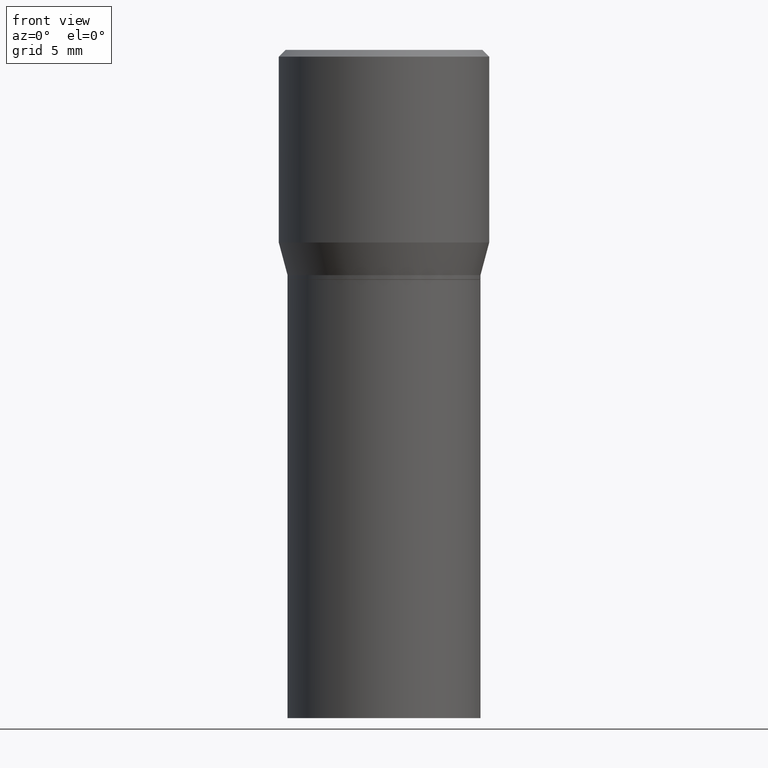
[diagram: clean part render]
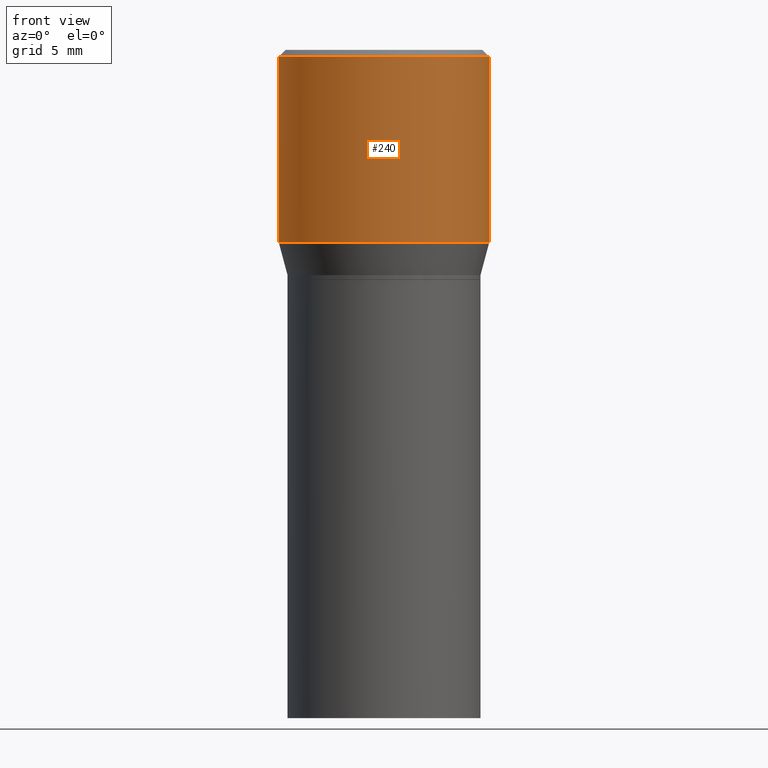
[diagram: same view with one face highlighted and labeled with its STEP entity id]
A machine part, front view. The second image highlights one B-rep face of the part: STEP entity #240.
In plain terms, the highlighted cylindrical surface (partial cylindrical patch) has radius 5.9995 mm, axis along (-0, 0, 1).
Its self-contained STEP definition (entity closure, byte-faithful):
#11 = CARTESIAN_POINT ( 'NONE',  ( -0.2361999999999999933, 1.678301941865356591E-15, -1.161852468318208757E-29 ) ) ;
#15 = DIRECTION ( 'NONE',  ( 1.000000000000000000, -6.982962677686268288E-15, 0.000000000000000000 ) ) ;
#22 = LINE ( 'NONE', #124, #61 ) ;
#57 = CARTESIAN_POINT ( 'NONE',  ( 1.057335613469222325E-29, -1.509595033060739709E-15, -0.4323652016312719004 ) ) ;
#61 = VECTOR ( 'NONE', #423, 39.37007874015748143 ) ;
#75 = CARTESIAN_POINT ( 'NONE',  ( 0.2361999999999999933, -3.158970817530236235E-15, -0.4323652016312719004 ) ) ;
#110 = FACE_OUTER_BOUND ( 'NONE', #420, .T. ) ;
#112 = VECTOR ( 'NONE', #378, 39.37007874015748143 ) ;
#124 = CARTESIAN_POINT ( 'NONE',  ( 0.2361999999999999933, -1.649375784469496131E-15, 1.151752954443000088E-29 ) ) ;
#127 = AXIS2_PLACEMENT_3D ( 'NONE', #57, #215, #15 ) ;
#129 = ORIENTED_EDGE ( 'NONE', *, *, #308, .T. ) ;
#136 = DIRECTION ( 'NONE',  ( 1.000000000000000000, -6.982962677686266711E-15, 0.000000000000000000 ) ) ;
#145 = EDGE_CURVE ( 'NONE', #317, #426, #162, .T. ) ;
#162 = CIRCLE ( 'NONE', #262, 0.2361999999999999933 ) ;
#175 = CARTESIAN_POINT ( 'NONE',  ( -0.2361999999999999933, 1.687069088046168326E-16, -0.4323652016312719004 ) ) ;
#176 = VERTEX_POINT ( 'NONE', #75 ) ;
#201 = CARTESIAN_POINT ( 'NONE',  ( 0.2361999999999999933, -1.701748004552143407E-15, -0.01499999999999999944 ) ) ;
#204 = CIRCLE ( 'NONE', #127, 0.2361999999999999933 ) ;
#205 = CARTESIAN_POINT ( 'NONE',  ( 0.000000000000000000, 0.000000000000000000, 0.000000000000000000 ) ) ;
#206 = ORIENTED_EDGE ( 'NONE', *, *, #374, .F. ) ;
#215 = DIRECTION ( 'NONE',  ( -2.445468806185136597E-29, 3.491481338843145583E-15, 1.000000000000000000 ) ) ;
#240 = ADVANCED_FACE ( 'NONE', ( #110 ), #243, .T. ) ;
#242 = VERTEX_POINT ( 'NONE', #175 ) ;
#243 = CYLINDRICAL_SURFACE ( 'NONE', #273, 0.2361999999999999933 ) ;
#255 = DIRECTION ( 'NONE',  ( 1.000000000000000000, -6.982962677686266711E-15, 4.876176775795936353E-29 ) ) ;
#262 = AXIS2_PLACEMENT_3D ( 'NONE', #389, #460, #136 ) ;
#273 = AXIS2_PLACEMENT_3D ( 'NONE', #205, #325, #255 ) ;
#307 = ORIENTED_EDGE ( 'NONE', *, *, #145, .F. ) ;
#308 = EDGE_CURVE ( 'NONE', #242, #176, #204, .T. ) ;
#317 = VERTEX_POINT ( 'NONE', #413 ) ;
#318 = ORIENTED_EDGE ( 'NONE', *, *, #390, .T. ) ;
#325 = DIRECTION ( 'NONE',  ( -2.445468806185136597E-29, 3.491481338843145583E-15, 1.000000000000000000 ) ) ;
#328 = LINE ( 'NONE', #11, #112 ) ;
#374 = EDGE_CURVE ( 'NONE', #242, #317, #328, .T. ) ;
#378 = DIRECTION ( 'NONE',  ( -2.445468806185136877E-29, 3.491481338843145188E-15, 1.000000000000000000 ) ) ;
#389 = CARTESIAN_POINT ( 'NONE',  ( 3.668203209277705088E-31, -5.237222008264718399E-17, -0.01499999999999999944 ) ) ;
#390 = EDGE_CURVE ( 'NONE', #176, #426, #22, .T. ) ;
#413 = CARTESIAN_POINT ( 'NONE',  ( -0.2361999999999999933, 8.973183152936629998E-16, -0.01499999999999999944 ) ) ;
#420 = EDGE_LOOP ( 'NONE', ( #206, #129, #318, #307 ) ) ;
#423 = DIRECTION ( 'NONE',  ( -2.445468806185136877E-29, 3.491481338843145188E-15, 1.000000000000000000 ) ) ;
#426 = VERTEX_POINT ( 'NONE', #201 ) ;
#460 = DIRECTION ( 'NONE',  ( -2.445468806185136597E-29, 3.491481338843145583E-15, 1.000000000000000000 ) ) ;